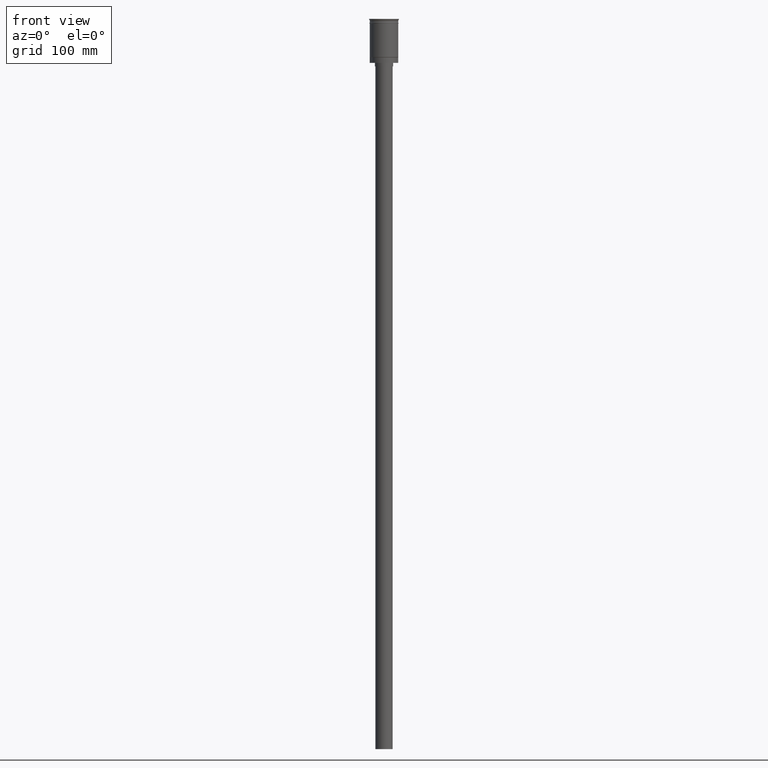
[diagram: clean part render]
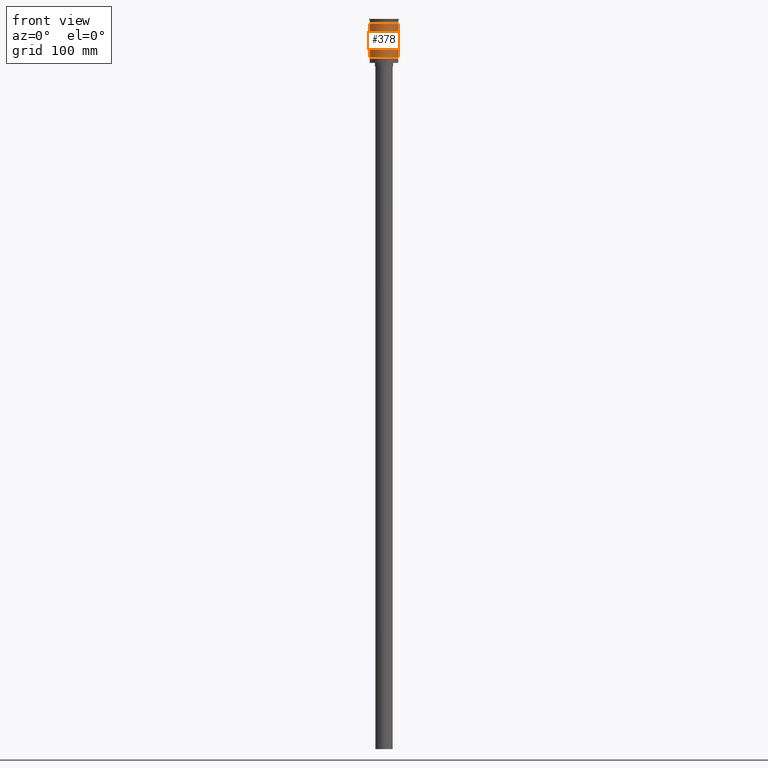
[diagram: same view with one face highlighted and labeled with its STEP entity id]
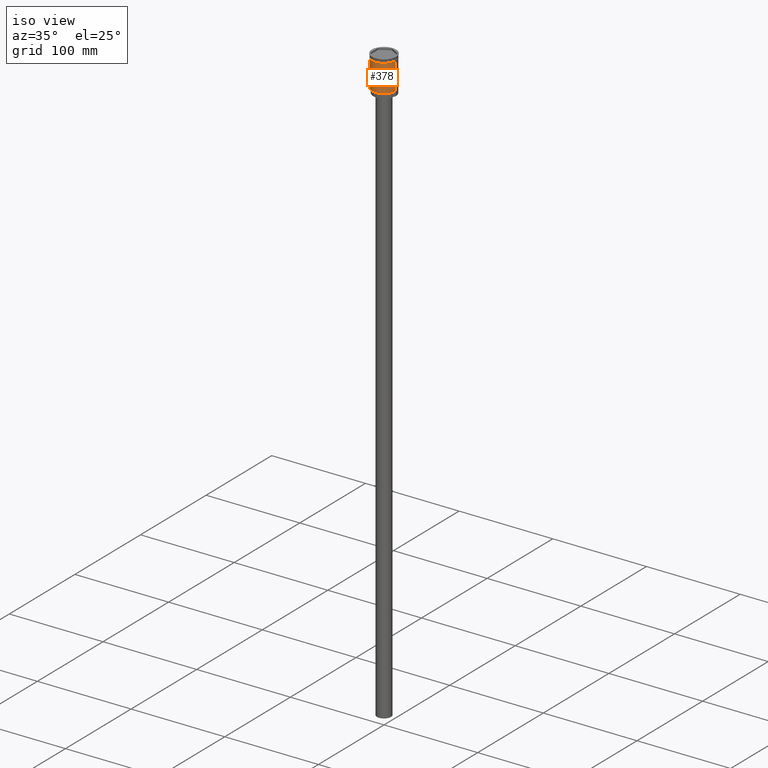
[diagram: same view with one face highlighted and labeled with its STEP entity id]
A machine part, front view. The second image highlights one B-rep face of the part: STEP entity #378.
A second angle (iso view) of the same face is appended — the face is thin or edge-on in the first view.
In plain terms, the highlighted cylindrical surface (edge-blend (fillet) strip) has radius 12.5 mm, axis along (-0, -0, 1).
Its self-contained STEP definition (entity closure, byte-faithful):
#44 = CARTESIAN_POINT ( 'NONE',  ( 0.000000000000000000, 0.000000000000000000, -33.30000000000005400 ) ) ;
#73 = CARTESIAN_POINT ( 'NONE',  ( -12.49999999999999289, 0.000000000000000000, -33.30000000000005400 ) ) ;
#116 = EDGE_LOOP ( 'NONE', ( #1276, #456, #929, #1277 ) ) ;
#122 = CARTESIAN_POINT ( 'NONE',  ( 12.49999999999999645, 0.000000000000000000, 0.000000000000000000 ) ) ;
#136 = AXIS2_PLACEMENT_3D ( 'NONE', #1062, #222, #963 ) ;
#222 = DIRECTION ( 'NONE',  ( -0.000000000000000000, -0.000000000000000000, 1.000000000000000000 ) ) ;
#270 = CARTESIAN_POINT ( 'NONE',  ( 12.49999999999999645, 1.530808498934191127E-15, -33.30000000000005400 ) ) ;
#303 = EDGE_CURVE ( 'NONE', #582, #1011, #1332, .T. ) ;
#305 = CARTESIAN_POINT ( 'NONE',  ( 0.000000000000000000, 0.000000000000000000, -3.999999999999996447 ) ) ;
#378 = ADVANCED_FACE ( 'NONE', ( #1333 ), #971, .T. ) ;
#453 = VERTEX_POINT ( 'NONE', #73 ) ;
#456 = ORIENTED_EDGE ( 'NONE', *, *, #1290, .T. ) ;
#543 = DIRECTION ( 'NONE',  ( -0.000000000000000000, -0.000000000000000000, 1.000000000000000000 ) ) ;
#552 = CIRCLE ( 'NONE', #1474, 12.49999999999999822 ) ;
#570 = CARTESIAN_POINT ( 'NONE',  ( -12.50000000000000000, 1.530808498934191521E-15, -3.999999999999996447 ) ) ;
#582 = VERTEX_POINT ( 'NONE', #270 ) ;
#721 = DIRECTION ( 'NONE',  ( -0.000000000000000000, -0.000000000000000000, 1.000000000000000000 ) ) ;
#911 = EDGE_CURVE ( 'NONE', #453, #1535, #1058, .T. ) ;
#929 = ORIENTED_EDGE ( 'NONE', *, *, #303, .T. ) ;
#963 = DIRECTION ( 'NONE',  ( 1.000000000000000000, 0.000000000000000000, 0.000000000000000000 ) ) ;
#971 = CYLINDRICAL_SURFACE ( 'NONE', #136, 12.49999999999999645 ) ;
#1011 = VERTEX_POINT ( 'NONE', #1345 ) ;
#1032 = DIRECTION ( 'NONE',  ( 1.000000000000000000, 0.000000000000000000, 0.000000000000000000 ) ) ;
#1041 = DIRECTION ( 'NONE',  ( -0.000000000000000000, -0.000000000000000000, 1.000000000000000000 ) ) ;
#1058 = LINE ( 'NONE', #1426, #1100 ) ;
#1062 = CARTESIAN_POINT ( 'NONE',  ( 0.000000000000000000, 0.000000000000000000, 0.000000000000000000 ) ) ;
#1100 = VECTOR ( 'NONE', #1178, 1000.000000000000000 ) ;
#1178 = DIRECTION ( 'NONE',  ( -0.000000000000000000, -0.000000000000000000, 1.000000000000000000 ) ) ;
#1276 = ORIENTED_EDGE ( 'NONE', *, *, #911, .F. ) ;
#1277 = ORIENTED_EDGE ( 'NONE', *, *, #1310, .F. ) ;
#1285 = AXIS2_PLACEMENT_3D ( 'NONE', #44, #1041, #1400 ) ;
#1290 = EDGE_CURVE ( 'NONE', #453, #582, #1340, .T. ) ;
#1310 = EDGE_CURVE ( 'NONE', #1535, #1011, #552, .T. ) ;
#1324 = VECTOR ( 'NONE', #721, 1000.000000000000000 ) ;
#1332 = LINE ( 'NONE', #122, #1324 ) ;
#1333 = FACE_OUTER_BOUND ( 'NONE', #116, .T. ) ;
#1340 = CIRCLE ( 'NONE', #1285, 12.49999999999999645 ) ;
#1345 = CARTESIAN_POINT ( 'NONE',  ( 12.49999999999999822, 0.000000000000000000, -3.999999999999996447 ) ) ;
#1400 = DIRECTION ( 'NONE',  ( -1.000000000000000000, 0.000000000000000000, 0.000000000000000000 ) ) ;
#1426 = CARTESIAN_POINT ( 'NONE',  ( -12.49999999999999645, 1.530808498934191127E-15, 0.000000000000000000 ) ) ;
#1474 = AXIS2_PLACEMENT_3D ( 'NONE', #305, #543, #1032 ) ;
#1535 = VERTEX_POINT ( 'NONE', #570 ) ;